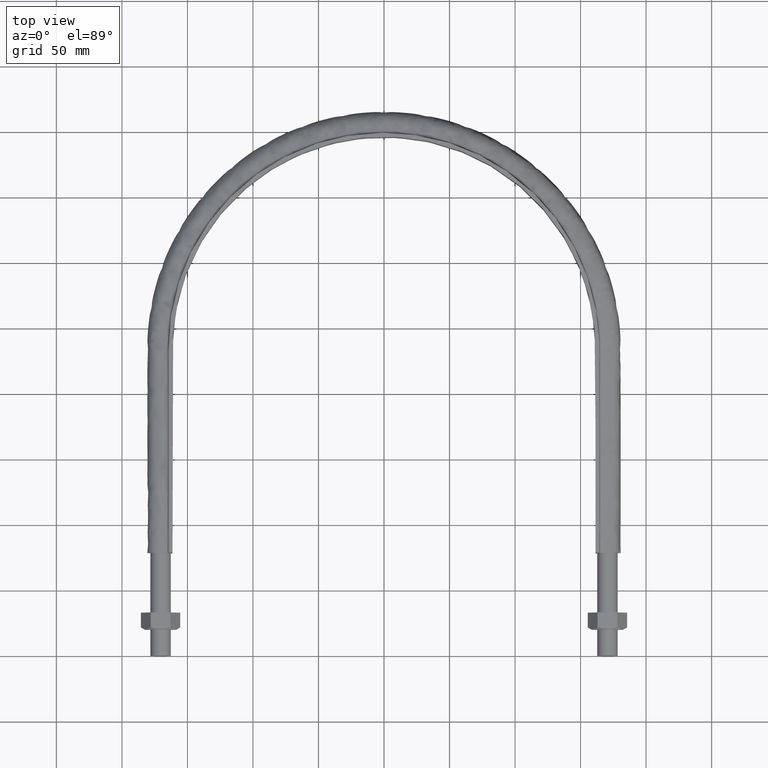
[diagram: clean part render]
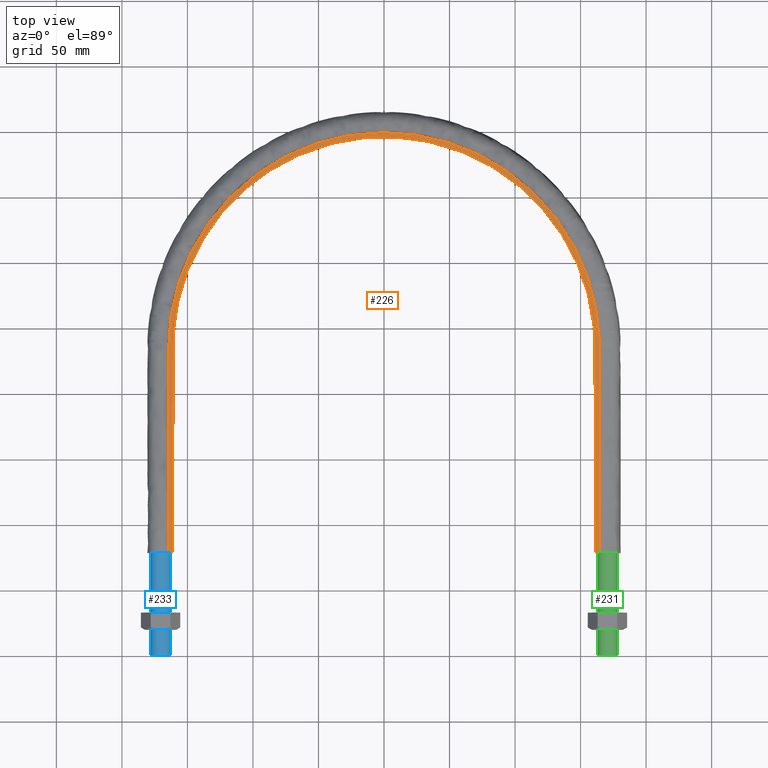
[diagram: same view with three faces highlighted in distinct colors, each labeled with its STEP entity id]
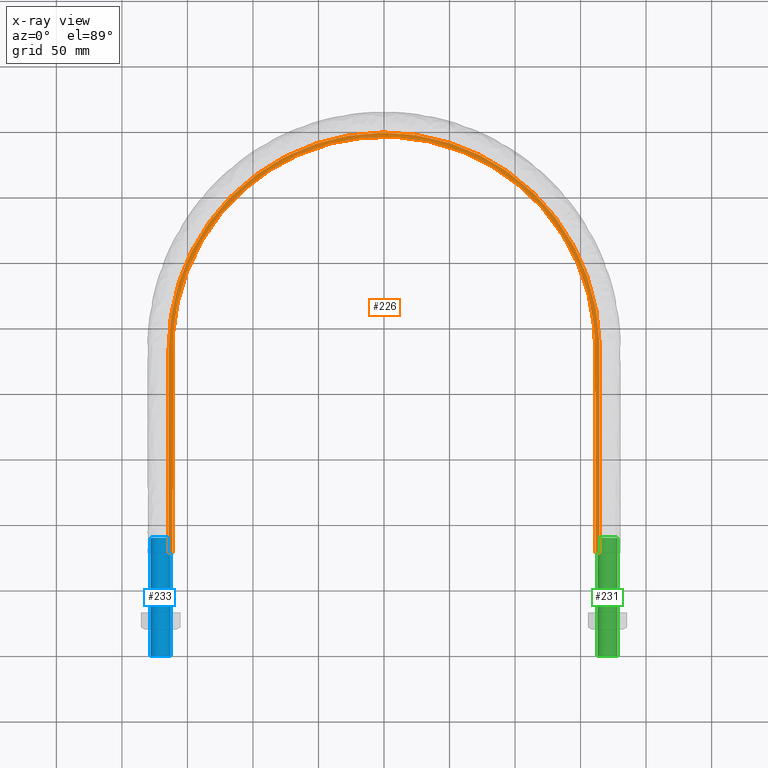
[diagram: x-ray of the same camera — body ghosted, the three highlighted faces saturated]
A machine part, top view with three faces highlighted in distinct colors.
The next image is the same camera in x-ray (body ghosted, the three faces saturated) — at least one of them is partly hidden behind the body in this view.
Their STEP definitions:

[orange] entity #226 — the highlighted planar face has unit normal (0, 0, 1).
#226 = ADVANCED_FACE( '', ( #276 ), #277, .T. );
#276 = FACE_OUTER_BOUND( '', #954, .T. );
#277 = PLANE( '', #955 );
#954 = EDGE_LOOP( '', ( #1716, #1717, #1718, #1719 ) );
#955 = AXIS2_PLACEMENT_3D( '', #1720, #1721, #1722 );
#1716 = ORIENTED_EDGE( '', *, *, #1935, .T. );
#1717 = ORIENTED_EDGE( '', *, *, #1937, .T. );
#1718 = ORIENTED_EDGE( '', *, *, #1930, .T. );
#1719 = ORIENTED_EDGE( '', *, *, #1921, .F. );
#1720 = CARTESIAN_POINT( '', ( 200.000000000000, 478.510000000000, 20.0000000000000 ) );
#1721 = DIRECTION( '', ( 0.000000000000000, 0.000000000000000, 1.00000000000000 ) );
#1722 = DIRECTION( '', ( 1.22460635382238E-016, 1.00000000000000, 0.000000000000000 ) );
#1921 = EDGE_CURVE( '', #1994, #1996, #1997, .T. );
#1930 = EDGE_CURVE( '', #2007, #1996, #2012, .T. );
#1935 = EDGE_CURVE( '', #1994, #2019, #2021, .T. );
#1937 = EDGE_CURVE( '', #2019, #2007, #2023, .T. );
#1994 = VERTEX_POINT( '', #2137 );
#1996 = VERTEX_POINT( '', #2140 );
#1997 = B_SPLINE_CURVE_WITH_KNOTS( '', 3, ( #2141, #2142, #2143, #2144, #2145, #2146, #2147, #2148, #2149, #2150, #2151, #2152, #2153, #2154, #2155, #2156, #2157, #2158, #2159, #2160, #2161, #2162, #2163, #2164, #2165, #2166, #2167, #2168, #2169, #2170, #2171, #2172, #2173, #2174, #2175, #2176, #2177, #2178, #2179, #2180, #2181, #2182, #2183, #2184, #2185, #2186, #2187, #2188, #2189, #2190, #2191, #2192, #2193, #2194, #2195, #2196, #2197, #2198, #2199, #2200, #2201, #2202, #2203, #2204, #2205, #2206, #2207, #2208, #2209, #2210, #2211, #2212, #2213, #2214, #2215, #2216, #2217, #2218, #2219, #2220, #2221, #2222, #2223, #2224, #2225, #2226, #2227, #2228, #2229, #2230, #2231, #2232, #2233, #2234, #2235, #2236, #2237, #2238, #2239, #2240, #2241, #2242, #2243, #2244, #2245, #2246, #2247, #2248, #2249, #2250, #2251, #2252, #2253, #2254, #2255, #2256, #2257, #2258, #2259, #2260, #2261, #2262, #2263, #2264, #2265, #2266, #2267, #2268, #2269, #2270, #2271 ), .UNSPECIFIED., .F., .F., ( 4, 1, 1, 1, 1, 2, 2, 2, 2, 2, 2, 2, 2, 2, 2, 2, 2, 2, 2, 2, 2, 2, 2, 2, 2, 2, 2, 2, 2, 2, 2, 2, 2, 2, 2, 2, 2, 2, 2, 2, 2, 2, 2, 2, 2, 2, 2, 2, 2, 2, 2, 2, 2, 2, 2, 2, 1, 2, 2, 2, 2, 2, 2, 2, 2, 1, 1, 1, 1, 4 ), ( 2.77555756156289E-017, 0.104054729085099, 0.130068411356374, 0.143075252492011, 0.149578673059830, 0.152830383343739, 0.156082093627649, 0.159333803911558, 0.162585514195467, 0.169088934763286, 0.182095775898923, 0.195102617034561, 0.208109458170198, 0.221116299305835, 0.227619719873654, 0.234123140441472, 0.247129981577110, 0.260136822712748, 0.273143663848385, 0.276395374132295, 0.279647084416204, 0.286150504984023, 0.299157346119661, 0.312164187255299, 0.325171028390937, 0.331674448958756, 0.334926159242665, 0.338177869526575, 0.351184710662212, 0.364191551797850, 0.377198392933488, 0.383701813501307, 0.386953523785217, 0.390205234069126, 0.403212075204764, 0.416218916340402, 0.429225757476039, 0.442232598611677, 0.448736019179496, 0.455239439747315, 0.468246280882953, 0.481253122018591, 0.494259963154229, 0.500763383722048, 0.507266804289866, 0.520273645425504, 0.533280486561142, 0.546287327696780, 0.552790748264599, 0.556042458548509, 0.559294168832418, 0.572301009968056, 0.585307851103695, 0.598314692239333, 0.611321533374971, 0.614573243658881, 0.617824953942790, 0.624328374510610, 0.637335215646248, 0.650342056781887, 0.663348897917525, 0.669852318485345, 0.673104028769254, 0.676355739053164, 0.679607449337074, 0.682859159620983, 0.689362580188803, 0.702369421324441, 0.728383103595718, 0.832437832680827 ), .UNSPECIFIED. );
#2007 = VERTEX_POINT( '', #2463 );
#2012 = LINE( '', #2471, #2472 );
#2019 = VERTEX_POINT( '', #2620 );
#2021 = LINE( '', #2623, #2624 );
#2023 = B_SPLINE_CURVE_WITH_KNOTS( '', 3, ( #2627, #2628, #2629, #2630, #2631, #2632, #2633, #2634, #2635, #2636, #2637, #2638, #2639, #2640, #2641, #2642, #2643, #2644 ), .UNSPECIFIED., .F., .F., ( 4, 3, 1, 1, 1, 1, 1, 1, 1, 1, 3, 4 ), ( -11.0000000000000, -10.0000000000000, -9.00000000000000, -8.00000000000000, -7.00000000000000, -6.00000000000000, -5.00000000000000, -4.00000000000000, -3.00000000000000, -2.00000000000000, -1.00000000000000, 0.000000000000000 ), .UNSPECIFIED. );
#2137 = CARTESIAN_POINT( '', ( -164.400000000000, 78.5100000000001, 20.0000000000000 ) );
#2140 = CARTESIAN_POINT( '', ( 164.400000000000, 78.5100000000000, 20.0000000000000 ) );
#2141 = CARTESIAN_POINT( '', ( -164.400000000000, 78.5100000000001, 20.0000000000000 ) );
#2142 = CARTESIAN_POINT( '', ( -164.400000000000, 113.194956691566, 20.0000000000000 ) );
#2143 = CARTESIAN_POINT( '', ( -164.400000000000, 156.551152556023, 20.0000000000000 ) );
#2144 = CARTESIAN_POINT( '', ( -164.400000000000, 204.242968006925, 20.0000000000000 ) );
#2145 = CARTESIAN_POINT( '', ( -164.400000000000, 219.417636559485, 20.0000000000000 ) );
#2146 = CARTESIAN_POINT( '', ( -164.400000000000, 227.004970835765, 20.0000000000000 ) );
#2147 = CARTESIAN_POINT( '', ( -164.400000000000, 230.256685525600, 20.0000000000000 ) );
#2148 = CARTESIAN_POINT( '', ( -164.400000000000, 232.424495318822, 20.0000000000000 ) );
#2149 = CARTESIAN_POINT( '', ( -164.401112814939, 233.508402047329, 20.0000000000000 ) );
#2150 = CARTESIAN_POINT( '', ( -164.397791436545, 235.676206372960, 20.0000000000000 ) );
#2151 = CARTESIAN_POINT( '', ( -164.389397229220, 236.760097451181, 20.0000000000000 ) );
#2152 = CARTESIAN_POINT( '', ( -164.346347317781, 238.927836376429, 20.0000000000000 ) );
#2153 = CARTESIAN_POINT( '', ( -164.314015247172, 240.011688048578, 20.0000000000000 ) );
#2154 = CARTESIAN_POINT( '', ( -164.184658021982, 243.263189792919, 20.0000000000000 ) );
#2155 = CARTESIAN_POINT( '', ( -164.054986387869, 245.432649531974, 20.0000000000000 ) );
#2156 = CARTESIAN_POINT( '', ( -163.540089866603, 251.903443163600, 20.0000000000000 ) );
#2157 = CARTESIAN_POINT( '', ( -163.028857186243, 256.178647842775, 20.0000000000000 ) );
#2158 = CARTESIAN_POINT( '', ( -161.680784922929, 264.654119101835, 20.0000000000000 ) );
#2159 = CARTESIAN_POINT( '', ( -160.843839994310, 268.854361436522, 20.0000000000000 ) );
#2160 = CARTESIAN_POINT( '', ( -158.845991034652, 277.180287246151, 20.0000000000000 ) );
#2161 = CARTESIAN_POINT( '', ( -157.684954010363, 281.305940112830, 20.0000000000000 ) );
#2162 = CARTESIAN_POINT( '', ( -155.032434907614, 289.481194251209, 20.0000000000000 ) );
#2163 = CARTESIAN_POINT( '', ( -153.540637667281, 293.530722988721, 20.0000000000000 ) );
#2164 = CARTESIAN_POINT( '', ( -151.046446265382, 299.545983905575, 20.0000000000000 ) );
#2165 = CARTESIAN_POINT( '', ( -150.176639375757, 301.530591569493, 20.0000000000000 ) );
#2166 = CARTESIAN_POINT( '', ( -148.365677489268, 305.451034189665, 20.0000000000000 ) );
#2167 = CARTESIAN_POINT( '', ( -147.423966722706, 307.388338955483, 20.0000000000000 ) );
#2168 = CARTESIAN_POINT( '', ( -144.492313373278, 313.132875216603, 20.0000000000000 ) );
#2169 = CARTESIAN_POINT( '', ( -142.395491839975, 316.872502291715, 20.0000000000000 ) );
#2170 = CARTESIAN_POINT( '', ( -137.921089039277, 324.174166757923, 20.0000000000000 ) );
#2171 = CARTESIAN_POINT( '', ( -135.543392362294, 327.736131148692, 20.0000000000000 ) );
#2172 = CARTESIAN_POINT( '', ( -130.504111697188, 334.680491951780, 20.0000000000000 ) );
#2173 = CARTESIAN_POINT( '', ( -127.842299055254, 338.062743733108, 20.0000000000000 ) );
#2174 = CARTESIAN_POINT( '', ( -124.331524748112, 342.174483348522, 20.0000000000000 ) );
#2175 = CARTESIAN_POINT( '', ( -123.620193252742, 342.991026751497, 20.0000000000000 ) );
#2176 = CARTESIAN_POINT( '', ( -122.179027254974, 344.612409802341, 20.0000000000000 ) );
#2177 = CARTESIAN_POINT( '', ( -121.449202472707, 345.417189981225, 20.0000000000000 ) );
#2178 = CARTESIAN_POINT( '', ( -119.241901422662, 347.803147571145, 20.0000000000000 ) );
#2179 = CARTESIAN_POINT( '', ( -117.743364650805, 349.359649553347, 20.0000000000000 ) );
#2180 = CARTESIAN_POINT( '', ( -113.168603753494, 353.929094656276, 20.0000000000000 ) );
#2181 = CARTESIAN_POINT( '', ( -110.013226002109, 356.841973084908, 20.0000000000000 ) );
#2182 = CARTESIAN_POINT( '', ( -103.496070778988, 362.406802862434, 20.0000000000000 ) );
#2183 = CARTESIAN_POINT( '', ( -100.134198242753, 365.058634032373, 20.0000000000000 ) );
#2184 = CARTESIAN_POINT( '', ( -93.2034983802276, 370.100667582661, 20.0000000000000 ) );
#2185 = CARTESIAN_POINT( '', ( -89.6348208454345, 372.491059326918, 20.0000000000000 ) );
#2186 = CARTESIAN_POINT( '', ( -84.1216642835690, 375.874200301249, 20.0000000000000 ) );
#2187 = CARTESIAN_POINT( '', ( -82.2572525184672, 376.968169226840, 20.0000000000000 ) );
#2188 = CARTESIAN_POINT( '', ( -79.4199251739018, 378.557658096212, 20.0000000000000 ) );
#2189 = CARTESIAN_POINT( '', ( -78.4664937880052, 379.079355636746, 20.0000000000000 ) );
#2190 = CARTESIAN_POINT( '', ( -76.5540001382406, 380.101226290090, 20.0000000000000 ) );
#2191 = CARTESIAN_POINT( '', ( -75.5941946256137, 380.601833763861, 20.0000000000000 ) );
#2192 = CARTESIAN_POINT( '', ( -70.7776054635646, 383.053904702580, 20.0000000000000 ) );
#2193 = CARTESIAN_POINT( '', ( -66.8682015972559, 384.852656297690, 20.0000000000000 ) );
#2194 = CARTESIAN_POINT( '', ( -58.9404340251246, 388.133941467266, 20.0000000000000 ) );
#2195 = CARTESIAN_POINT( '', ( -54.9221074398528, 389.616582771215, 20.0000000000000 ) );
#2196 = CARTESIAN_POINT( '', ( -46.7771352731516, 392.267507183327, 20.0000000000000 ) );
#2197 = CARTESIAN_POINT( '', ( -42.6507752742865, 393.436619095512, 20.0000000000000 ) );
#2198 = CARTESIAN_POINT( '', ( -36.3779362801238, 394.948540612918, 20.0000000000000 ) );
#2199 = CARTESIAN_POINT( '', ( -34.2731054845818, 395.412219626068, 20.0000000000000 ) );
#2200 = CARTESIAN_POINT( '', ( -31.0947095102929, 396.046358265766, 20.0000000000000 ) );
#2201 = CARTESIAN_POINT( '', ( -30.0317191361272, 396.247507583013, 20.0000000000000 ) );
#2202 = CARTESIAN_POINT( '', ( -27.8986333936937, 396.629186444371, 20.0000000000000 ) );
#2203 = CARTESIAN_POINT( '', ( -26.8273434139476, 396.809901238470, 20.0000000000000 ) );
#2204 = CARTESIAN_POINT( '', ( -21.4696015124299, 397.658929575961, 20.0000000000000 ) );
#2205 = CARTESIAN_POINT( '', ( -17.1843900398022, 398.163087914421, 20.0000000000000 ) );
#2206 = CARTESIAN_POINT( '', ( -8.61585586475865, 398.834704046002, 20.0000000000000 ) );
#2207 = CARTESIAN_POINT( '', ( -4.33253349702328, 399.002102177489, 20.0000000000000 ) );
#2208 = CARTESIAN_POINT( '', ( 4.23224776209717, 399.004706890968, 20.0000000000000 ) );
#2209 = CARTESIAN_POINT( '', ( 8.51370656732957, 398.839898114999, 20.0000000000000 ) );
#2210 = CARTESIAN_POINT( '', ( 17.0747401533934, 398.174426027001, 20.0000000000000 ) );
#2211 = CARTESIAN_POINT( '', ( 21.3543151187173, 397.673795603420, 20.0000000000000 ) );
#2212 = CARTESIAN_POINT( '', ( 27.7722131616373, 396.661798633605, 20.0000000000000 ) );
#2213 = CARTESIAN_POINT( '', ( 29.9140086384622, 396.280063374137, 20.0000000000000 ) );
#2214 = CARTESIAN_POINT( '', ( 34.1597071945925, 395.435755209705, 20.0000000000000 ) );
#2215 = CARTESIAN_POINT( '', ( 36.2679191606560, 394.972624095616, 20.0000000000000 ) );
#2216 = CARTESIAN_POINT( '', ( 42.5495878486235, 393.462944409615, 20.0000000000000 ) );
#2217 = CARTESIAN_POINT( '', ( 46.6801348271452, 392.296270371903, 20.0000000000000 ) );
#2218 = CARTESIAN_POINT( '', ( 54.8292840046184, 389.649533827342, 20.0000000000000 ) );
#2219 = CARTESIAN_POINT( '', ( 58.8478709900213, 388.169428730293, 20.0000000000000 ) );
#2220 = CARTESIAN_POINT( '', ( 66.7727743121212, 384.894917799151, 20.0000000000000 ) );
#2221 = CARTESIAN_POINT( '', ( 70.6791112233383, 383.100569563256, 20.0000000000000 ) );
#2222 = CARTESIAN_POINT( '', ( 76.4520718313724, 380.166765884875, 20.0000000000000 ) );
#2223 = CARTESIAN_POINT( '', ( 78.3619473175643, 379.148393463067, 20.0000000000000 ) );
#2224 = CARTESIAN_POINT( '', ( 82.1521398445211, 377.028900000017, 20.0000000000000 ) );
#2225 = CARTESIAN_POINT( '', ( 84.0218361506168, 375.933662305826, 20.0000000000000 ) );
#2226 = CARTESIAN_POINT( '', ( 89.5459979753039, 372.549008376613, 20.0000000000000 ) );
#2227 = CARTESIAN_POINT( '', ( 93.1199772103749, 370.158194645052, 20.0000000000000 ) );
#2228 = CARTESIAN_POINT( '', ( 100.057978294400, 365.117239772002, 20.0000000000000 ) );
#2229 = CARTESIAN_POINT( '', ( 103.421801536315, 362.466853322407, 20.0000000000000 ) );
#2230 = CARTESIAN_POINT( '', ( 109.940193148706, 356.907620719419, 20.0000000000000 ) );
#2231 = CARTESIAN_POINT( '', ( 113.094804278784, 353.998827380253, 20.0000000000000 ) );
#2232 = CARTESIAN_POINT( '', ( 117.666768975033, 349.438073768973, 20.0000000000000 ) );
#2233 = CARTESIAN_POINT( '', ( 119.164117876872, 347.884919181141, 20.0000000000000 ) );
#2234 = CARTESIAN_POINT( '', ( 121.369267704188, 345.504702647796, 20.0000000000000 ) );
#2235 = CARTESIAN_POINT( '', ( 122.097504670182, 344.702882136057, 20.0000000000000 ) );
#2236 = CARTESIAN_POINT( '', ( 123.540195090078, 343.082216503173, 20.0000000000000 ) );
#2237 = CARTESIAN_POINT( '', ( 124.254377380732, 342.263630681842, 20.0000000000000 ) );
#2238 = CARTESIAN_POINT( '', ( 127.774789921488, 338.146514758162, 20.0000000000000 ) );
#2239 = CARTESIAN_POINT( '', ( 130.442435347831, 334.761097001747, 20.0000000000000 ) );
#2240 = CARTESIAN_POINT( '', ( 135.490619375250, 327.813142423090, 20.0000000000000 ) );
#2241 = CARTESIAN_POINT( '', ( 137.871345881554, 324.250721521460, 20.0000000000000 ) );
#2242 = CARTESIAN_POINT( '', ( 142.349926805872, 316.951373103878, 20.0000000000000 ) );
#2243 = CARTESIAN_POINT( '', ( 144.447832885230, 313.214477458325, 20.0000000000000 ) );
#2244 = CARTESIAN_POINT( '', ( 148.357643246085, 305.564248803828, 20.0000000000000 ) );
#2245 = CARTESIAN_POINT( '', ( 150.170208090246, 301.651323302585, 20.0000000000000 ) );
#2246 = CARTESIAN_POINT( '', ( 152.249962193091, 296.645450810826, 20.0000000000000 ) );
#2247 = CARTESIAN_POINT( '', ( 152.656898188070, 295.637746950875, 20.0000000000000 ) );
#2248 = CARTESIAN_POINT( '', ( 153.448598221970, 293.619489616341, 20.0000000000000 ) );
#2249 = CARTESIAN_POINT( '', ( 154.604082453025, 290.585090430424, 20.0000000000000 ) );
#2250 = CARTESIAN_POINT( '', ( 155.664224929572, 287.529838845210, 20.0000000000000 ) );
#2251 = CARTESIAN_POINT( '', ( 157.659619292073, 281.392020586269, 20.0000000000000 ) );
#2252 = CARTESIAN_POINT( '', ( 158.823627411515, 277.263779806072, 20.0000000000000 ) );
#2253 = CARTESIAN_POINT( '', ( 160.826483259108, 268.936181720188, 20.0000000000000 ) );
#2254 = CARTESIAN_POINT( '', ( 161.665372921473, 264.736833586023, 20.0000000000000 ) );
#2255 = CARTESIAN_POINT( '', ( 163.017050638177, 256.266814936675, 20.0000000000000 ) );
#2256 = CARTESIAN_POINT( '', ( 163.530043425186, 251.996189199013, 20.0000000000000 ) );
#2257 = CARTESIAN_POINT( '', ( 164.048104978438, 245.535260317745, 20.0000000000000 ) );
#2258 = CARTESIAN_POINT( '', ( 164.178967102381, 243.370129820416, 20.0000000000000 ) );
#2259 = CARTESIAN_POINT( '', ( 164.310513690544, 240.116451581564, 20.0000000000000 ) );
#2260 = CARTESIAN_POINT( '', ( 164.343561000334, 239.031880269039, 20.0000000000000 ) );
#2261 = CARTESIAN_POINT( '', ( 164.388013795319, 236.862713802188, 20.0000000000000 ) );
#2262 = CARTESIAN_POINT( '', ( 164.397282425713, 235.778116293786, 20.0000000000000 ) );
#2263 = CARTESIAN_POINT( '', ( 164.401463363768, 233.608905461284, 20.0000000000000 ) );
#2264 = CARTESIAN_POINT( '', ( 164.400000000000, 232.524296129938, 20.0000000000000 ) );
#2265 = CARTESIAN_POINT( '', ( 164.400000000000, 230.355080691488, 20.0000000000000 ) );
#2266 = CARTESIAN_POINT( '', ( 164.400000000000, 227.101257533813, 20.0000000000000 ) );
#2267 = CARTESIAN_POINT( '', ( 164.400000000000, 219.509003499239, 20.0000000000000 ) );
#2268 = CARTESIAN_POINT( '', ( 164.400000000000, 204.324495430090, 20.0000000000000 ) );
#2269 = CARTESIAN_POINT( '', ( 164.400000000000, 156.601755784194, 20.0000000000000 ) );
#2270 = CARTESIAN_POINT( '', ( 164.400000000000, 113.217447015197, 20.0000000000000 ) );
#2271 = CARTESIAN_POINT( '', ( 164.400000000000, 78.5099999999999, 20.0000000000000 ) );
#2463 = CARTESIAN_POINT( '', ( 161.400000000000, 78.5100000000001, 20.0000000000000 ) );
#2471 = CARTESIAN_POINT( '', ( -200.000000000000, 78.5100000000001, 20.0000000000000 ) );
#2472 = VECTOR( '', #2936, 1000.00000000000 );
#2620 = CARTESIAN_POINT( '', ( -161.400000000000, 78.5100000000001, 20.0000000000000 ) );
#2623 = CARTESIAN_POINT( '', ( -200.000000000000, 78.5100000000001, 20.0000000000000 ) );
#2624 = VECTOR( '', #2939, 1000.00000000000 );
#2627 = CARTESIAN_POINT( '', ( -161.400000000000, 78.5100000000001, 20.0000000000000 ) );
#2628 = CARTESIAN_POINT( '', ( -161.400000000000, 130.543333333333, 20.0000000000000 ) );
#2629 = CARTESIAN_POINT( '', ( -161.400000000000, 182.576666666667, 20.0000000000000 ) );
#2630 = CARTESIAN_POINT( '', ( -161.400000000000, 234.610000000000, 20.0000000000000 ) );
#2631 = CARTESIAN_POINT( '', ( -161.400000000000, 253.377198593415, 20.0000000000000 ) );
#2632 = CARTESIAN_POINT( '', ( -154.777803559236, 290.949605256109, 20.0000000000000 ) );
#2633 = CARTESIAN_POINT( '', ( -126.176021511748, 340.482890510073, 20.0000000000000 ) );
#2634 = CARTESIAN_POINT( '', ( -82.3555491101910, 377.254353924046, 20.0000000000000 ) );
#2635 = CARTESIAN_POINT( '', ( -28.6017820474880, 396.818694818595, 20.0000000000000 ) );
#2636 = CARTESIAN_POINT( '', ( 28.6017820474882, 396.818694818595, 20.0000000000000 ) );
#2637 = CARTESIAN_POINT( '', ( 82.3555491101912, 377.254353924046, 20.0000000000000 ) );
#2638 = CARTESIAN_POINT( '', ( 126.176021511748, 340.482890510073, 20.0000000000000 ) );
#2639 = CARTESIAN_POINT( '', ( 154.777803559236, 290.949605256109, 20.0000000000000 ) );
#2640 = CARTESIAN_POINT( '', ( 161.400000000000, 253.377198593415, 20.0000000000000 ) );
#2641 = CARTESIAN_POINT( '', ( 161.400000000000, 234.610000000000, 20.0000000000000 ) );
#2642 = CARTESIAN_POINT( '', ( 161.400000000000, 182.576666666667, 20.0000000000000 ) );
#2643 = CARTESIAN_POINT( '', ( 161.400000000000, 130.543333333333, 20.0000000000000 ) );
#2644 = CARTESIAN_POINT( '', ( 161.400000000000, 78.5100000000000, 20.0000000000000 ) );
#2936 = DIRECTION( '', ( 1.00000000000000, -1.22460635382238E-016, 0.000000000000000 ) );
#2939 = DIRECTION( '', ( 1.00000000000000, -1.22460635382238E-016, 0.000000000000000 ) );

[blue] entity #233 — the highlighted cylindrical surface (bore or boss wall) has radius 7.75 mm, axis along (0, 1, -0).
#233 = ADVANCED_FACE( '', ( #294, #295 ), #296, .T. );
#294 = FACE_OUTER_BOUND( '', #1366, .T. );
#295 = FACE_OUTER_BOUND( '', #1367, .T. );
#296 = CYLINDRICAL_SURFACE( '', #1368, 7.75000000000001 );
#1366 = EDGE_LOOP( '', ( #1745 ) );
#1367 = EDGE_LOOP( '', ( #1746 ) );
#1368 = AXIS2_PLACEMENT_3D( '', #1747, #1748, #1749 );
#1745 = ORIENTED_EDGE( '', *, *, #1944, .T. );
#1746 = ORIENTED_EDGE( '', *, *, #1943, .F. );
#1747 = CARTESIAN_POINT( '', ( -170.500000000000, 90.0000000000000, -2.75536429610035E-014 ) );
#1748 = DIRECTION( '', ( 2.44921270764476E-016, 1.00000000000000, -3.06151588455594E-016 ) );
#1749 = DIRECTION( '', ( 1.00000000000000, -2.44921270764476E-016, -5.47382212626882E-048 ) );
#1943 = EDGE_CURVE( '', #2033, #2033, #2034, .T. );
#1944 = EDGE_CURVE( '', #2035, #2035, #2036, .T. );
#2033 = VERTEX_POINT( '', #2691 );
#2034 = CIRCLE( '', #2692, 7.75000000000001 );
#2035 = VERTEX_POINT( '', #2693 );
#2036 = CIRCLE( '', #2694, 7.75000000000001 );
#2691 = CARTESIAN_POINT( '', ( -162.750000000000, 3.98609368169184E-014, 0.000000000000000 ) );
#2692 = AXIS2_PLACEMENT_3D( '', #2947, #2948, #2949 );
#2693 = CARTESIAN_POINT( '', ( -162.750000000000, 90.0000000000000, -2.75536429610035E-014 ) );
#2694 = AXIS2_PLACEMENT_3D( '', #2950, #2951, #2952 );
#2947 = CARTESIAN_POINT( '', ( -170.500000000000, 4.17590766653431E-014, -6.41805644305019E-046 ) );
#2948 = DIRECTION( '', ( -2.44921270764475E-016, -1.00000000000000, 3.06151588455594E-016 ) );
#2949 = DIRECTION( '', ( 1.00000000000000, -2.44921270764476E-016, 8.28136315232281E-047 ) );
#2950 = CARTESIAN_POINT( '', ( -170.500000000000, 90.0000000000000, -2.75536429610035E-014 ) );
#2951 = DIRECTION( '', ( -2.44921270764475E-016, -1.00000000000000, 3.06151588455594E-016 ) );
#2952 = DIRECTION( '', ( 1.00000000000000, -2.44921270764476E-016, 8.28136315232281E-047 ) );

[green] entity #231 — the highlighted cylindrical surface (bore or boss wall) has radius 7.75 mm, axis along (0, 1, -0).
#231 = ADVANCED_FACE( '', ( #289, #290 ), #291, .T. );
#289 = FACE_OUTER_BOUND( '', #1361, .T. );
#290 = FACE_OUTER_BOUND( '', #1362, .T. );
#291 = CYLINDRICAL_SURFACE( '', #1363, 7.75000000000001 );
#1361 = EDGE_LOOP( '', ( #1736 ) );
#1362 = EDGE_LOOP( '', ( #1737 ) );
#1363 = AXIS2_PLACEMENT_3D( '', #1738, #1739, #1740 );
#1736 = ORIENTED_EDGE( '', *, *, #1941, .T. );
#1737 = ORIENTED_EDGE( '', *, *, #1942, .F. );
#1738 = CARTESIAN_POINT( '', ( 170.500000000000, 89.9999999999999, -2.75536429610035E-014 ) );
#1739 = DIRECTION( '', ( 2.44921270764476E-016, 1.00000000000000, -3.06151588455594E-016 ) );
#1740 = DIRECTION( '', ( 1.00000000000000, -2.44921270764476E-016, -5.47382212626882E-048 ) );
#1941 = EDGE_CURVE( '', #2029, #2029, #2030, .T. );
#1942 = EDGE_CURVE( '', #2031, #2031, #2032, .T. );
#2029 = VERTEX_POINT( '', #2687 );
#2030 = CIRCLE( '', #2688, 7.75000000000001 );
#2031 = VERTEX_POINT( '', #2689 );
#2032 = CIRCLE( '', #2690, 7.75000000000001 );
#2687 = CARTESIAN_POINT( '', ( 178.250000000000, 89.9999999999999, -2.75536429610035E-014 ) );
#2688 = AXIS2_PLACEMENT_3D( '', #2941, #2942, #2943 );
#2689 = CARTESIAN_POINT( '', ( 178.250000000000, -4.36572165137678E-014, -1.36845553156720E-045 ) );
#2690 = AXIS2_PLACEMENT_3D( '', #2944, #2945, #2946 );
#2941 = CARTESIAN_POINT( '', ( 170.500000000000, 89.9999999999999, -2.75536429610035E-014 ) );
#2942 = DIRECTION( '', ( -2.44921270764475E-016, -1.00000000000000, 3.06151588455594E-016 ) );
#2943 = DIRECTION( '', ( 1.00000000000000, -2.44921270764476E-016, -5.47382212626882E-048 ) );
#2944 = CARTESIAN_POINT( '', ( 170.500000000000, -4.17590766653431E-014, -1.32603341008862E-045 ) );
#2945 = DIRECTION( '', ( -2.44921270764475E-016, -1.00000000000000, 3.06151588455594E-016 ) );
#2946 = DIRECTION( '', ( 1.00000000000000, -2.44921270764476E-016, -5.47382212626882E-048 ) );